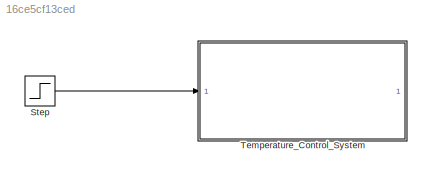
MODEL slx_16ce5cf13ced
KIND model
CONFIG AbsTol = auto
CONFIG EnableMultiTasking = on
CONFIG FixedStep = 1e-3
CONFIG MaxStep = 1e-3
CONFIG MinStep = auto
CONFIG RelTol = 1e-3
CONFIG SampleTimeConstraint = Unconstrained
CONFIG SolverName = VariableStepAuto
CONFIG StartTime = 0.0
CONFIG StopTime = 100
BLOCK [Step] Step
  After = Desired_temperature
  Before = 10
  SampleTime = 0
  Time = 4
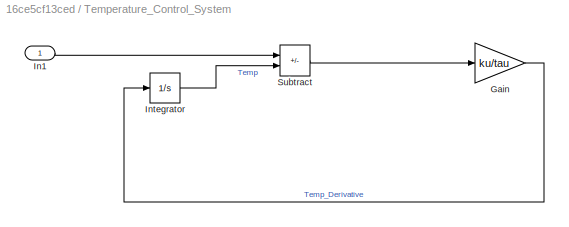
BLOCK [SubSystem] Temperature_Control_System
BLOCK [Gain] Temperature_Control_System/Gain
  Gain = ku/tau
BLOCK [Inport] Temperature_Control_System/In1
BLOCK [Integrator] Temperature_Control_System/Integrator
  InitialCondition = Current_temperature
BLOCK [Sum] Temperature_Control_System/Subtract
  IconShape = rectangular
  Inputs = +-
LINE Step:1 -> Temperature_Control_System:1
LINE Temperature_Control_System/Gain:1 -> Temperature_Control_System/Integrator:1
LINE Temperature_Control_System/In1:1 -> Temperature_Control_System/Subtract:1
LINE Temperature_Control_System/Integrator:1 -> Temperature_Control_System/Subtract:2
LINE Temperature_Control_System/Subtract:1 -> Temperature_Control_System/Gain:1
